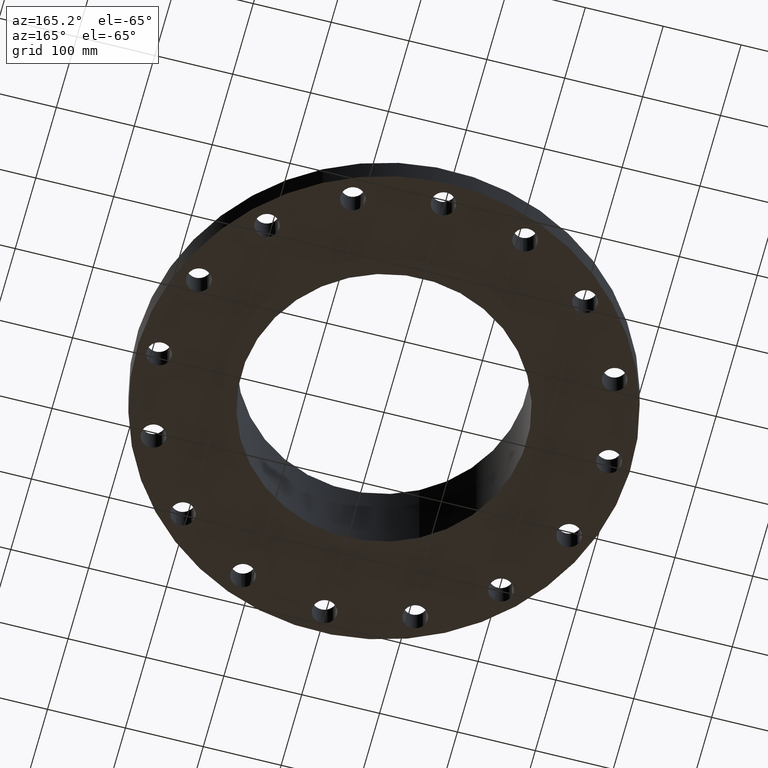
[diagram: clean part render]
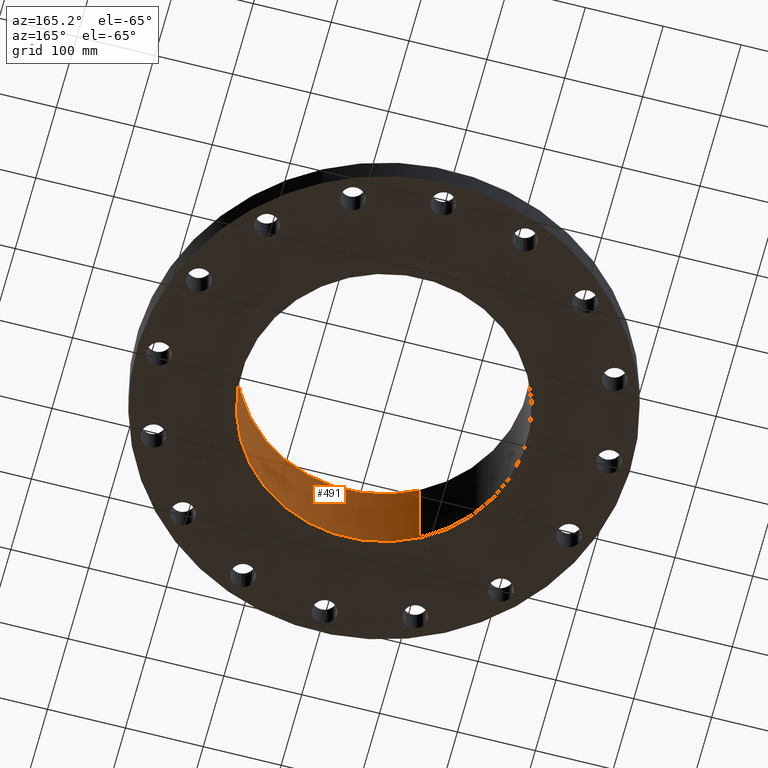
[diagram: same view with one face highlighted and labeled with its STEP entity id]
A machine part, auxiliary view. The second image highlights one B-rep face of the part: STEP entity #491.
In plain terms, the highlighted cylindrical surface (partial cylindrical patch) has radius 183.363 mm, axis along (0, 0, -1).
Its self-contained STEP definition (entity closure, byte-faithful):
#441=AXIS2_PLACEMENT_3D('Circle Axis2P3D',#439,#440,$) ;
#452=AXIS2_PLACEMENT_3D('Cylinder Axis2P3D',#449,#450,#451) ;
#482=AXIS2_PLACEMENT_3D('Circle Axis2P3D',#480,#481,$) ;
#434=CARTESIAN_POINT('Vertex',(-3.4609729632,-6.33526851431,5.50000000002)) ;
#436=CARTESIAN_POINT('Vertex',(3.4609729632,6.33526851431,5.50000000002)) ;
#439=CARTESIAN_POINT('Axis2P3D Location',(3.91637728372E-015,2.79741234551E-016,5.50000000002)) ;
#449=CARTESIAN_POINT('Axis2P3D Location',(0.,0.,2.80000000001)) ;
#454=CARTESIAN_POINT('Line Origine',(-3.4609729632,-6.33526851431,2.75000000001)) ;
#458=CARTESIAN_POINT('Vertex',(-3.4609729632,-6.33526851431,-6.93758261687E-014)) ;
#465=CARTESIAN_POINT('Vertex',(3.4609729632,6.33526851431,-6.93758261687E-014)) ;
#468=CARTESIAN_POINT('Line Origine',(3.4609729632,6.33526851431,2.75000000001)) ;
#480=CARTESIAN_POINT('Axis2P3D Location',(0.,0.,-6.93758261687E-014)) ;
#440=DIRECTION('Axis2P3D Direction',(0.,-0.,-0.0393700787402)) ;
#450=DIRECTION('Axis2P3D Direction',(0.,0.,-0.0393700787402)) ;
#451=DIRECTION('Axis2P3D XDirection',(0.0188750212049,0.0345504945626,0.)) ;
#455=DIRECTION('Vector Direction',(0.,0.,-0.0393700787402)) ;
#469=DIRECTION('Vector Direction',(0.,0.,-0.0393700787402)) ;
#481=DIRECTION('Axis2P3D Direction',(0.,0.,-0.0393700787402)) ;
#456=VECTOR('Line Direction',#455,0.0393700787402) ;
#470=VECTOR('Line Direction',#469,0.0393700787402) ;
#486=ORIENTED_EDGE('',*,*,#472,.T.) ;
#487=ORIENTED_EDGE('',*,*,#484,.T.) ;
#488=ORIENTED_EDGE('',*,*,#460,.F.) ;
#489=ORIENTED_EDGE('',*,*,#443,.F.) ;
#491=ADVANCED_FACE('PartBody',(#490),#453,.F.) ;
#442=CIRCLE('generated circle',#441,7.21900000003) ;
#483=CIRCLE('generated circle',#482,7.21900000003) ;
#453=CYLINDRICAL_SURFACE('generated cylinder',#452,7.21900000003) ;
#443=EDGE_CURVE('',#437,#435,#442,.T.) ;
#460=EDGE_CURVE('',#435,#459,#457,.T.) ;
#472=EDGE_CURVE('',#437,#466,#471,.T.) ;
#484=EDGE_CURVE('',#466,#459,#483,.T.) ;
#485=EDGE_LOOP('',(#486,#487,#488,#489)) ;
#490=FACE_OUTER_BOUND('',#485,.T.) ;
#457=LINE('Line',#454,#456) ;
#471=LINE('Line',#468,#470) ;
#435=VERTEX_POINT('',#434) ;
#437=VERTEX_POINT('',#436) ;
#459=VERTEX_POINT('',#458) ;
#466=VERTEX_POINT('',#465) ;